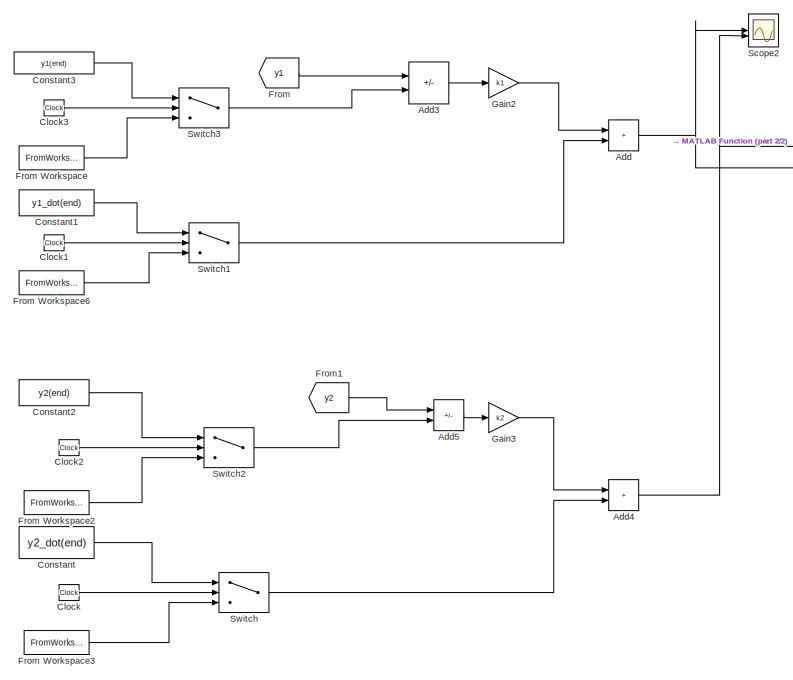
[diagram: root canvas - part 1/2, left side, full height]
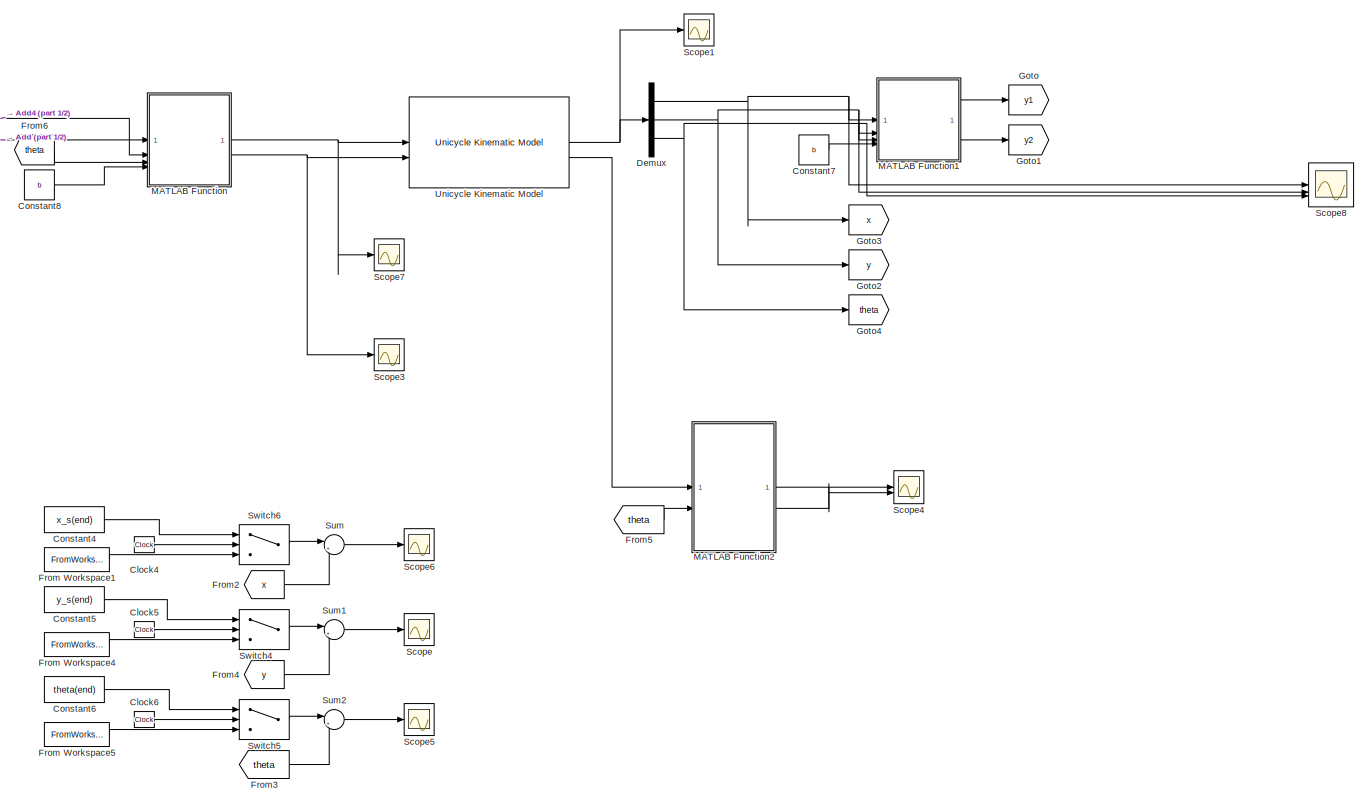
[diagram: root canvas - part 2/2, right side, full height]
MODEL slx_30c57fa61937
KIND model
CONFIG AbsTol = auto
CONFIG EnableMultiTasking = off
CONFIG FixedStep = Tc*Tf
CONFIG MaxStep = auto
CONFIG MinStep = auto
CONFIG RelTol = 1e-3
CONFIG SampleTimeConstraint = Unconstrained
CONFIG SolverName = FixedStepAuto
CONFIG StartTime = 0.0
CONFIG StopTime = 100
BLOCK [Sum] Add
  IconShape = rectangular
BLOCK [Sum] Add3
  IconShape = rectangular
  Inputs = -+
BLOCK [Sum] Add4
  IconShape = rectangular
BLOCK [Sum] Add5
  IconShape = rectangular
  Inputs = -+
BLOCK [Clock] Clock
BLOCK [Clock] Clock1
BLOCK [Clock] Clock2
BLOCK [Clock] Clock3
BLOCK [Clock] Clock4
BLOCK [Clock] Clock5
BLOCK [Clock] Clock6
BLOCK [Constant] Constant
  Value = y2_dot(end)
BLOCK [Constant] Constant1
  Value = y1_dot(end)
BLOCK [Constant] Constant2
  Value = y2(end)
BLOCK [Constant] Constant3
  Value = y1(end)
BLOCK [Constant] Constant4
  Value = x_s(end)
BLOCK [Constant] Constant5
  Value = y_s(end)
BLOCK [Constant] Constant6
  Value = theta(end)
BLOCK [Constant] Constant7
  Value = b
BLOCK [Constant] Constant8
  Value = b
BLOCK [Demux] Demux
  Outputs = 3
BLOCK [From] From
  GotoTag = y1
BLOCK [FromWorkspace] From Workspace
  VariableName = y1_des
BLOCK [FromWorkspace] From Workspace1
  VariableName = x_des
BLOCK [FromWorkspace] From Workspace2
  VariableName = y2_des
BLOCK [FromWorkspace] From Workspace3
  VariableName = y2_dot_des
BLOCK [FromWorkspace] From Workspace4
  VariableName = y_des
BLOCK [FromWorkspace] From Workspace5
  VariableName = theta_des
BLOCK [FromWorkspace] From Workspace6
  VariableName = y1_dot_des
BLOCK [From] From1
  GotoTag = y2
BLOCK [From] From2
  GotoTag = x
BLOCK [From] From3
  GotoTag = theta
BLOCK [From] From4
  GotoTag = y
BLOCK [From] From5
  GotoTag = theta
BLOCK [From] From6
  GotoTag = theta
BLOCK [Gain] Gain2
  Gain = k1
BLOCK [Gain] Gain3
  Gain = k2
BLOCK [Goto] Goto
  GotoTag = y1
BLOCK [Goto] Goto1
  GotoTag = y2
BLOCK [Goto] Goto2
  GotoTag = y
BLOCK [Goto] Goto3
  GotoTag = x
BLOCK [Goto] Goto4
  GotoTag = theta
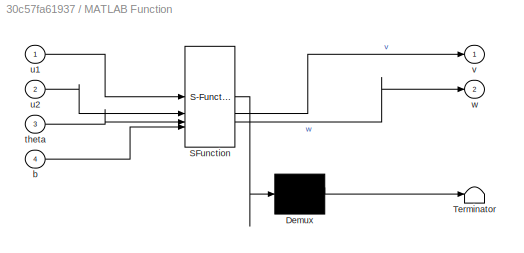
BLOCK [SubSystem] MATLAB Function
  ErrorFcn = Stateflow.Translate.translate
  LibrarySourceBlock = simulink/User-Defined\nFunctions/MATLAB Function
  PermitHierarchicalResolution = ExplicitOnly
  SFBlockType = MATLAB Function
  TreatAsAtomicUnit = on
BLOCK [Demux] MATLAB Function/ Demux 
  Outputs = 1
BLOCK [S-Function] MATLAB Function/ SFunction 
  EnableBusSupport = on
  FunctionName = sf_sfun
  PortCounts = [4 3]
  SFcnIsStateOwnerBlock = off
  SFunctionDeploymentMode = off
  Tag = Stateflow S-Function 2
BLOCK [Terminator] MATLAB Function/ Terminator 
BLOCK [Inport] MATLAB Function/b
  Port = 4
BLOCK [Inport] MATLAB Function/theta
  Port = 3
BLOCK [Inport] MATLAB Function/u1
BLOCK [Inport] MATLAB Function/u2
  Port = 2
BLOCK [Outport] MATLAB Function/v
BLOCK [Outport] MATLAB Function/w
  Port = 2
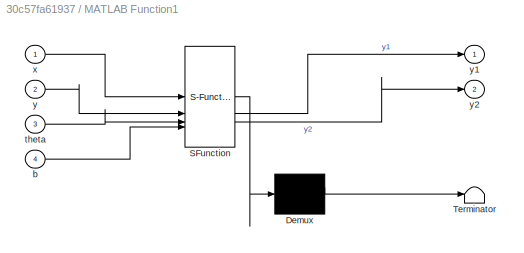
BLOCK [SubSystem] MATLAB Function1
  ErrorFcn = Stateflow.Translate.translate
  LibrarySourceBlock = simulink/User-Defined\nFunctions/MATLAB Function
  PermitHierarchicalResolution = ExplicitOnly
  SFBlockType = MATLAB Function
  TreatAsAtomicUnit = on
BLOCK [Demux] MATLAB Function1/ Demux 
  Outputs = 1
BLOCK [S-Function] MATLAB Function1/ SFunction 
  EnableBusSupport = on
  FunctionName = sf_sfun
  PortCounts = [4 3]
  SFcnIsStateOwnerBlock = off
  SFunctionDeploymentMode = off
  Tag = Stateflow S-Function 1
BLOCK [Terminator] MATLAB Function1/ Terminator 
BLOCK [Inport] MATLAB Function1/b
  Port = 4
BLOCK [Inport] MATLAB Function1/theta
  Port = 3
BLOCK [Inport] MATLAB Function1/x
BLOCK [Inport] MATLAB Function1/y
  Port = 2
BLOCK [Outport] MATLAB Function1/y1
BLOCK [Outport] MATLAB Function1/y2
  Port = 2
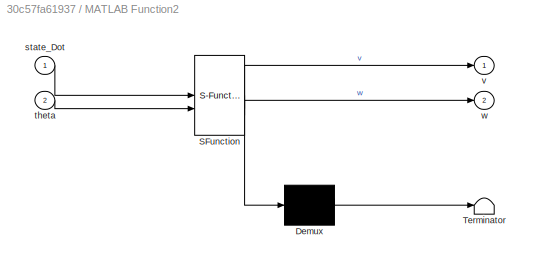
BLOCK [SubSystem] MATLAB Function2
  ErrorFcn = Stateflow.Translate.translate
  PermitHierarchicalResolution = ExplicitOnly
  SFBlockType = MATLAB Function
  TreatAsAtomicUnit = on
BLOCK [Demux] MATLAB Function2/ Demux 
  Outputs = 1
BLOCK [S-Function] MATLAB Function2/ SFunction 
  EnableBusSupport = on
  FunctionName = sf_sfun
  PortCounts = [2 3]
  SFcnIsStateOwnerBlock = off
  SFunctionDeploymentMode = off
  Tag = Stateflow S-Function 3
BLOCK [Terminator] MATLAB Function2/ Terminator 
BLOCK [Inport] MATLAB Function2/state_Dot
BLOCK [Inport] MATLAB Function2/theta
  Port = 2
BLOCK [Outport] MATLAB Function2/v
BLOCK [Outport] MATLAB Function2/w
  Port = 2
BLOCK [Scope] Scope
  Floating = off
  NumInputPorts = 1
  ScopeSpecificationString = Simulink.scopes.TimeScopeBlockCfg('CurrentConfiguration', extmgr.ConfigurationSet(extmgr.Configuration('Core','General UI',true,'FigureColor',[1 1 1]),extmgr.Configuration('Core','Source UI',true),extmgr.Configuration('Sources','WiredSimulink',true,'DataLoggingVariableName','ScopeData1'),extmgr.Configuration('Visuals','Time Domain',true,'SerializedDisplays',{struct('MinYLimReal','-0.00073','MaxYLi...<+1511ch>
BLOCK [Scope] Scope1
  Floating = off
  NumInputPorts = 1
  ScopeSpecificationString = Simulink.scopes.TimeScopeBlockCfg('CurrentConfiguration', extmgr.ConfigurationSet(extmgr.Configuration('Core','General UI',true),extmgr.Configuration('Core','Source UI',true),extmgr.Configuration('Sources','WiredSimulink',true,'DataLoggingVariableName','ScopeData5'),extmgr.Configuration('Visuals','Time Domain',true,'SerializedDisplays',{struct('MinYLimReal','-0.10612','MaxYLimReal','0.95506','YLab...<+1524ch>
BLOCK [Scope] Scope2
  Floating = off
  NumInputPorts = 2
  ScopeSpecificationString = Simulink.scopes.TimeScopeBlockCfg('CurrentConfiguration', extmgr.ConfigurationSet(extmgr.Configuration('Core','General UI',true),extmgr.Configuration('Core','Source UI',true),extmgr.Configuration('Sources','WiredSimulink',true,'DataLoggingVariableName','ScopeData3'),extmgr.Configuration('Visuals','Time Domain',true,'SerializedDisplays',{struct('MinYLimReal','-2.68516','MaxYLimReal','5.23568','YLab...<+1442ch>
BLOCK [Scope] Scope3
  Floating = off
  NumInputPorts = 1
  ScopeSpecificationString = Simulink.scopes.TimeScopeBlockCfg('CurrentConfiguration', extmgr.ConfigurationSet(extmgr.Configuration('Core','General UI',true,'FigureColor',[1 1 1]),extmgr.Configuration('Core','Source UI',true),extmgr.Configuration('Sources','WiredSimulink',true,'DataLoggingVariableName','ScopeData6'),extmgr.Configuration('Visuals','Time Domain',true,'SerializedDisplays',{struct('MinYLimReal','-1.12768','MaxYLi...<+1602ch>
BLOCK [Scope] Scope4
  Floating = off
  NumInputPorts = 2
  ScopeSpecificationString = Simulink.scopes.TimeScopeBlockCfg('CurrentConfiguration', extmgr.ConfigurationSet(extmgr.Configuration('Core','General UI',true),extmgr.Configuration('Core','Source UI',true),extmgr.Configuration('Sources','WiredSimulink',true,'DataLoggingVariableName','ScopeData4'),extmgr.Configuration('Visuals','Time Domain',true,'SerializedDisplays',{struct('MinYLimReal','-1.21678','MaxYLimReal','1.24183','YLab...<+1479ch>
BLOCK [Scope] Scope5
  Floating = off
  NumInputPorts = 1
  ScopeSpecificationString = Simulink.scopes.TimeScopeBlockCfg('CurrentConfiguration', extmgr.ConfigurationSet(extmgr.Configuration('Core','General UI',true,'FigureColor',[1 1 1]),extmgr.Configuration('Core','Source UI',true),extmgr.Configuration('Sources','WiredSimulink',true,'DataLoggingVariableName','ScopeData2'),extmgr.Configuration('Visuals','Time Domain',true,'SerializedDisplays',{struct('MinYLimReal','-0.80674','MaxYLi...<+1511ch>
BLOCK [Scope] Scope6
  Floating = off
  NumInputPorts = 1
  ScopeSpecificationString = Simulink.scopes.TimeScopeBlockCfg('CurrentConfiguration', extmgr.ConfigurationSet(extmgr.Configuration('Core','General UI',true,'FigureColor',[1 1 1]),extmgr.Configuration('Core','Source UI',true),extmgr.Configuration('Sources','WiredSimulink',true,'DataLoggingVariableName','ScopeData3'),extmgr.Configuration('Visuals','Time Domain',true,'SerializedDisplays',{struct('MinYLimReal','-0.0002','MaxYLim...<+1558ch>
BLOCK [Scope] Scope7
  Floating = off
  NumInputPorts = 1
  ScopeSpecificationString = Simulink.scopes.TimeScopeBlockCfg('CurrentConfiguration', extmgr.ConfigurationSet(extmgr.Configuration('Core','General UI',true,'FigureColor',[1 1 1]),extmgr.Configuration('Core','Source UI',true),extmgr.Configuration('Sources','WiredSimulink',true,'DataLoggingVariableName','ScopeData7'),extmgr.Configuration('Visuals','Time Domain',true,'SerializedDisplays',{struct('MinYLimReal','-0.0058','MaxYLim...<+1575ch>
BLOCK [Scope] Scope8
  Floating = off
  NumInputPorts = 3
  ScopeSpecificationString = Simulink.scopes.TimeScopeBlockCfg('CurrentConfiguration', extmgr.ConfigurationSet(extmgr.Configuration('Core','General UI',true,'FigureColor',[1 1 1]),extmgr.Configuration('Core','Source UI',true),extmgr.Configuration('Sources','WiredSimulink',true,'DataLoggingVariableName','ScopeData8'),extmgr.Configuration('Visuals','Time Domain',true,'SerializedDisplays',{struct('MinYLimReal','-0.23756','MaxYLi...<+1598ch>
BLOCK [Sum] Sum
  Inputs = |+-
BLOCK [Sum] Sum1
  Inputs = |+-
BLOCK [Sum] Sum2
  Inputs = |+-
BLOCK [Switch] Switch
  Criteria = u2 > Threshold
  InputSameDT = off
  SaturateOnIntegerOverflow = off
  Threshold = Tf
BLOCK [Switch] Switch1
  Criteria = u2 > Threshold
  InputSameDT = off
  SaturateOnIntegerOverflow = off
  Threshold = Tf
BLOCK [Switch] Switch2
  Criteria = u2 > Threshold
  InputSameDT = off
  SaturateOnIntegerOverflow = off
  Threshold = Tf
BLOCK [Switch] Switch3
  Criteria = u2 > Threshold
  InputSameDT = off
  SaturateOnIntegerOverflow = off
  Threshold = Tf
BLOCK [Switch] Switch4
  Criteria = u2 > Threshold
  InputSameDT = off
  SaturateOnIntegerOverflow = off
  Threshold = Tf
BLOCK [Switch] Switch5
  Criteria = u2 > Threshold
  InputSameDT = off
  SaturateOnIntegerOverflow = off
  Threshold = Tf
BLOCK [Switch] Switch6
  Criteria = u2 > Threshold
  InputSameDT = off
  SaturateOnIntegerOverflow = off
  Threshold = Tf
BLOCK [Reference] Unicycle Kinematic Model  REF=robotmobilelib/Unicycle Kinematic Model
  SourceBlock = robotmobilelib/Unicycle Kinematic Model
  SourceType = Unicycle Kinematic Model
LINE Add3:1 -> Gain2:1
NET Add4:1 -> MATLAB Function:2, Scope2:2
LINE Add5:1 -> Gain3:1
NET Add:1 -> MATLAB Function:1, Scope2:1
LINE Clock1:1 -> Switch1:2
LINE Clock2:1 -> Switch2:2
LINE Clock3:1 -> Switch3:2
LINE Clock4:1 -> Switch6:2
LINE Clock5:1 -> Switch4:2
LINE Clock6:1 -> Switch5:2
LINE Clock:1 -> Switch:2
LINE Constant1:1 -> Switch1:1
LINE Constant2:1 -> Switch2:1
LINE Constant3:1 -> Switch3:1
LINE Constant4:1 -> Switch6:1
LINE Constant5:1 -> Switch4:1
LINE Constant6:1 -> Switch5:1
LINE Constant7:1 -> MATLAB Function1:4
LINE Constant8:1 -> MATLAB Function:4
LINE Constant:1 -> Switch:1
NET Demux:1 -> Goto3:1, MATLAB Function1:1, Scope8:1
NET Demux:2 -> Goto2:1, MATLAB Function1:2, Scope8:2
NET Demux:3 -> Goto4:1, MATLAB Function1:3, Scope8:3
LINE From Workspace1:1 -> Switch6:3
LINE From Workspace2:1 -> Switch2:3
LINE From Workspace3:1 -> Switch:3
LINE From Workspace4:1 -> Switch4:3
LINE From Workspace5:1 -> Switch5:3
LINE From Workspace6:1 -> Switch1:3
LINE From Workspace:1 -> Switch3:3
LINE From1:1 -> Add5:1
LINE From2:1 -> Sum:2
LINE From3:1 -> Sum2:2
LINE From4:1 -> Sum1:2
LINE From5:1 -> MATLAB Function2:2
LINE From6:1 -> MATLAB Function:3
LINE From:1 -> Add3:1
LINE Gain2:1 -> Add:1
LINE Gain3:1 -> Add4:1
LINE MATLAB Function1:1 -> Goto:1
LINE MATLAB Function1:2 -> Goto1:1
LINE MATLAB Function2:1 -> Scope4:1
LINE MATLAB Function2:2 -> Scope4:2
NET MATLAB Function:1 -> Scope7:1, Unicycle Kinematic Model:1
NET MATLAB Function:2 -> Scope3:1, Unicycle Kinematic Model:2
LINE Sum1:1 -> Scope:1
LINE Sum2:1 -> Scope5:1
LINE Sum:1 -> Scope6:1
LINE Switch1:1 -> Add:2
LINE Switch2:1 -> Add5:2
LINE Switch3:1 -> Add3:2
LINE Switch4:1 -> Sum1:1
LINE Switch5:1 -> Sum2:1
LINE Switch6:1 -> Sum:1
LINE Switch:1 -> Add4:2
NET Unicycle Kinematic Model:1 -> Demux:1, Scope1:1
LINE Unicycle Kinematic Model:2 -> MATLAB Function2:1
note: NET lines group one-source signal fan-out (src -> all destinations, sorted); 1:1 wires keep LINE
CHART MATLAB Function1 states=1 transitions=1
  STATE_LABEL 'eML_blk_kernel()'
  STATE_LABEL 'SCRIPT:\nfunction [y1 , y2] = fcn(x,y,theta,b)\n\ny1 = x + b*cos(theta);\ny2 = y + b*sin(theta);\n\nend\n\n'
CHART MATLAB Function states=1 transitions=1
  STATE_LABEL 'eML_blk_kernel()'
  STATE_LABEL 'SCRIPT:\nfunction [v,w] = fcn(u1,u2,theta,b)\n\nT=[cos(theta) -b*sin(theta); sin(theta) b*cos(theta)];\nT_inv=inv(T);\nf = T_inv*[u1;u2];\nv=f(1);\nw=f(2);\nend\n\n'
CHART MATLAB Function2 states=1 transitions=1
  STATE_LABEL 'eML_blk_kernel()'
  STATE_LABEL 'SCRIPT:\nfunction [v,w] = fcn(state_Dot,theta)\n\nw=state_Dot(3);\nv=state_Dot(1)/cos(theta);\n\nend'
CHART  states=0 transitions=0
CHART  states=0 transitions=0
CHART  states=0 transitions=0
